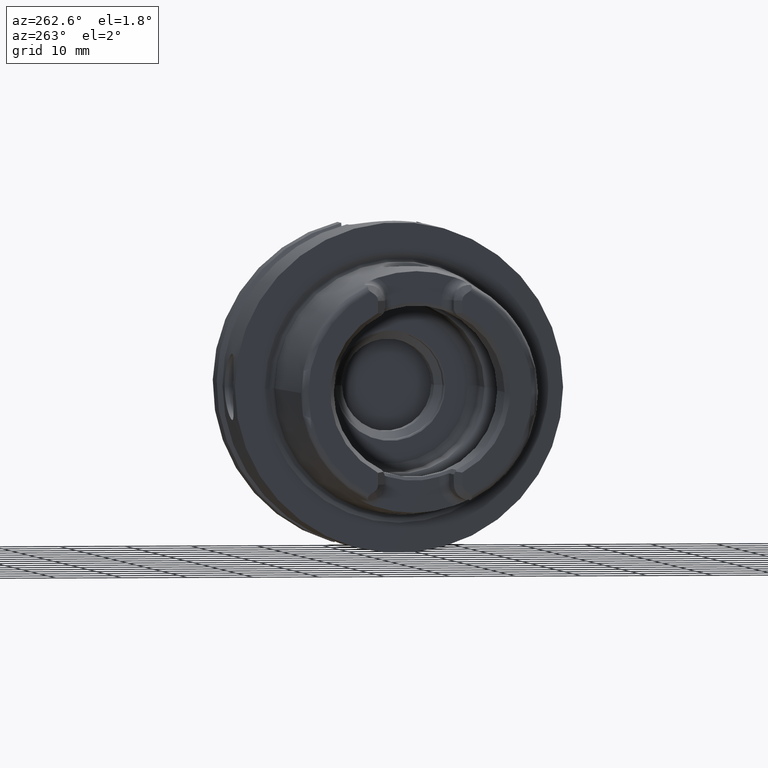
[diagram: clean part render]
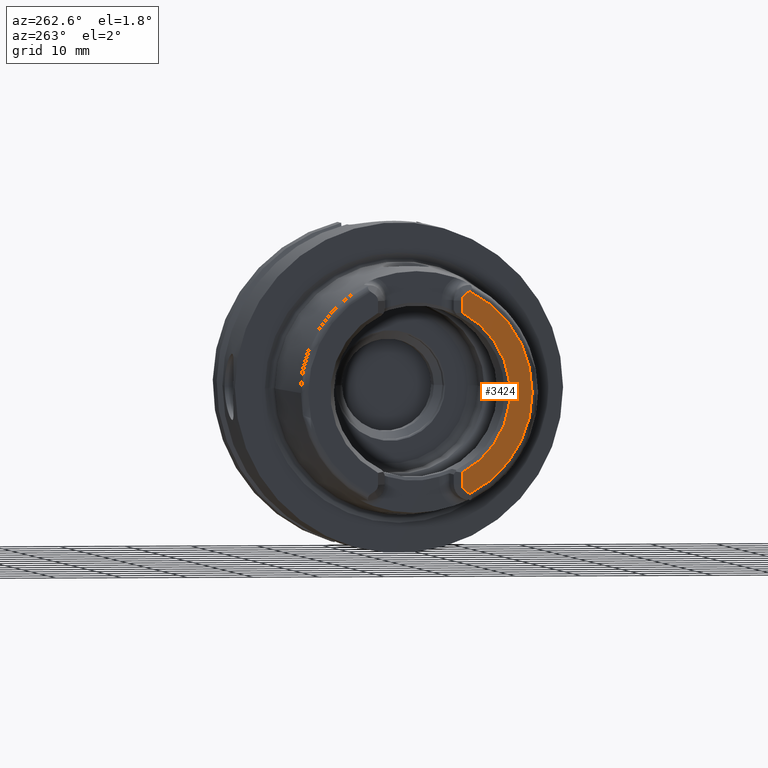
[diagram: same view with one face highlighted and labeled with its STEP entity id]
A machine part, auxiliary view. The second image highlights one B-rep face of the part: STEP entity #3424.
In plain terms, the highlighted planar face has unit normal (1, 0, 0).
Its self-contained STEP definition (entity closure, byte-faithful):
#112=DIRECTION('',(0.E0,0.E0,-1.E0));
#113=VECTOR('',#112,1.794408024424E0);
#114=CARTESIAN_POINT('',(-2.49E1,-6.42E0,-1.208559197558E1));
#115=LINE('',#114,#113);
#116=DIRECTION('',(0.E0,0.E0,1.E0));
#117=VECTOR('',#116,1.794408024424E0);
#118=CARTESIAN_POINT('',(-2.49E1,-6.42E0,1.208559197558E1));
#119=LINE('',#118,#117);
#120=CARTESIAN_POINT('',(-2.49E1,-7.65E0,1.388E1));
#121=DIRECTION('',(1.E0,0.E0,0.E0));
#122=DIRECTION('',(0.E0,1.E0,-1.444192552358E-14));
#123=AXIS2_PLACEMENT_3D('',#120,#121,#122);
#125=DIRECTION('',(0.E0,8.262563907023E-1,-5.632942187025E-1));
#126=VECTOR('',#125,7.112027059277E-1);
#127=CARTESIAN_POINT('',(-2.49E1,-7.544783891853E0,1.529691173314E1));
#128=LINE('',#127,#126);
#129=DIRECTION('',(0.E0,8.262563907023E-1,5.632942187025E-1));
#130=VECTOR('',#129,7.112027059277E-1);
#131=CARTESIAN_POINT('',(-2.49E1,-7.544783891853E0,-1.529691173314E1));
#132=LINE('',#131,#130);
#133=CARTESIAN_POINT('',(-2.49E1,-7.65E0,-1.388E1));
#134=DIRECTION('',(-1.E0,0.E0,0.E0));
#135=DIRECTION('',(0.E0,1.E0,0.E0));
#136=AXIS2_PLACEMENT_3D('',#133,#134,#135);
#207=CARTESIAN_POINT('',(-2.49E1,0.E0,0.E0));
#208=DIRECTION('',(1.E0,0.E0,0.E0));
#209=DIRECTION('',(0.E0,-4.691283988580E-1,8.831299708338E-1));
#210=AXIS2_PLACEMENT_3D('',#207,#208,#209);
#364=CARTESIAN_POINT('',(-2.49E1,0.E0,0.E0));
#365=DIRECTION('',(-1.E0,0.E0,0.E0));
#366=DIRECTION('',(0.E0,-4.423444250631E-1,-8.968452539962E-1));
#367=AXIS2_PLACEMENT_3D('',#364,#365,#366);
#2931=CARTESIAN_POINT('',(-2.49E1,-6.42E0,1.208559197558E1));
#2932=CARTESIAN_POINT('',(-2.49E1,-6.42E0,1.388E1));
#2933=VERTEX_POINT('',#2931);
#2934=VERTEX_POINT('',#2932);
#2935=CARTESIAN_POINT('',(-2.49E1,-6.957148110996E0,1.489629536056E1));
#2936=VERTEX_POINT('',#2935);
#2937=CARTESIAN_POINT('',(-2.49E1,-7.544783891853E0,1.529691173314E1));
#2938=VERTEX_POINT('',#2937);
#2963=CARTESIAN_POINT('',(-2.49E1,-6.42E0,-1.208559197558E1));
#2964=CARTESIAN_POINT('',(-2.49E1,-6.42E0,-1.388E1));
#2965=VERTEX_POINT('',#2963);
#2966=VERTEX_POINT('',#2964);
#2967=CARTESIAN_POINT('',(-2.49E1,-6.957148110996E0,-1.489629536056E1));
#2968=VERTEX_POINT('',#2967);
#2969=CARTESIAN_POINT('',(-2.49E1,-7.544783891853E0,-1.529691173314E1));
#2970=VERTEX_POINT('',#2969);
#3402=CARTESIAN_POINT('',(-2.49E1,0.E0,0.E0));
#3403=DIRECTION('',(1.E0,0.E0,0.E0));
#3404=DIRECTION('',(0.E0,-1.E0,0.E0));
#3405=AXIS2_PLACEMENT_3D('',#3402,#3403,#3404);
#3406=PLANE('',#3405);
#3408=ORIENTED_EDGE('',*,*,#3407,.F.);
#3410=ORIENTED_EDGE('',*,*,#3409,.F.);
#3412=ORIENTED_EDGE('',*,*,#3411,.T.);
#3414=ORIENTED_EDGE('',*,*,#3413,.T.);
#3415=ORIENTED_EDGE('',*,*,#3366,.F.);
#3417=ORIENTED_EDGE('',*,*,#3416,.F.);
#3419=ORIENTED_EDGE('',*,*,#3418,.T.);
#3421=ORIENTED_EDGE('',*,*,#3420,.F.);
#3422=EDGE_LOOP('',(#3408,#3410,#3412,#3414,#3415,#3417,#3419,#3421));
#3423=FACE_OUTER_BOUND('',#3422,.F.);
#3424=ADVANCED_FACE('',(#3423),#3406,.F.);
#124=CIRCLE('',#123,1.23E0);
#137=CIRCLE('',#136,1.23E0);
#211=CIRCLE('',#210,1.368495280957E1);
#368=CIRCLE('',#367,1.705635578153E1);
#3366=EDGE_CURVE('',#2938,#2936,#128,.T.);
#3407=EDGE_CURVE('',#2965,#2966,#115,.T.);
#3409=EDGE_CURVE('',#2933,#2965,#211,.T.);
#3411=EDGE_CURVE('',#2933,#2934,#119,.T.);
#3413=EDGE_CURVE('',#2934,#2936,#124,.T.);
#3416=EDGE_CURVE('',#2970,#2938,#368,.T.);
#3418=EDGE_CURVE('',#2970,#2968,#132,.T.);
#3420=EDGE_CURVE('',#2966,#2968,#137,.T.);